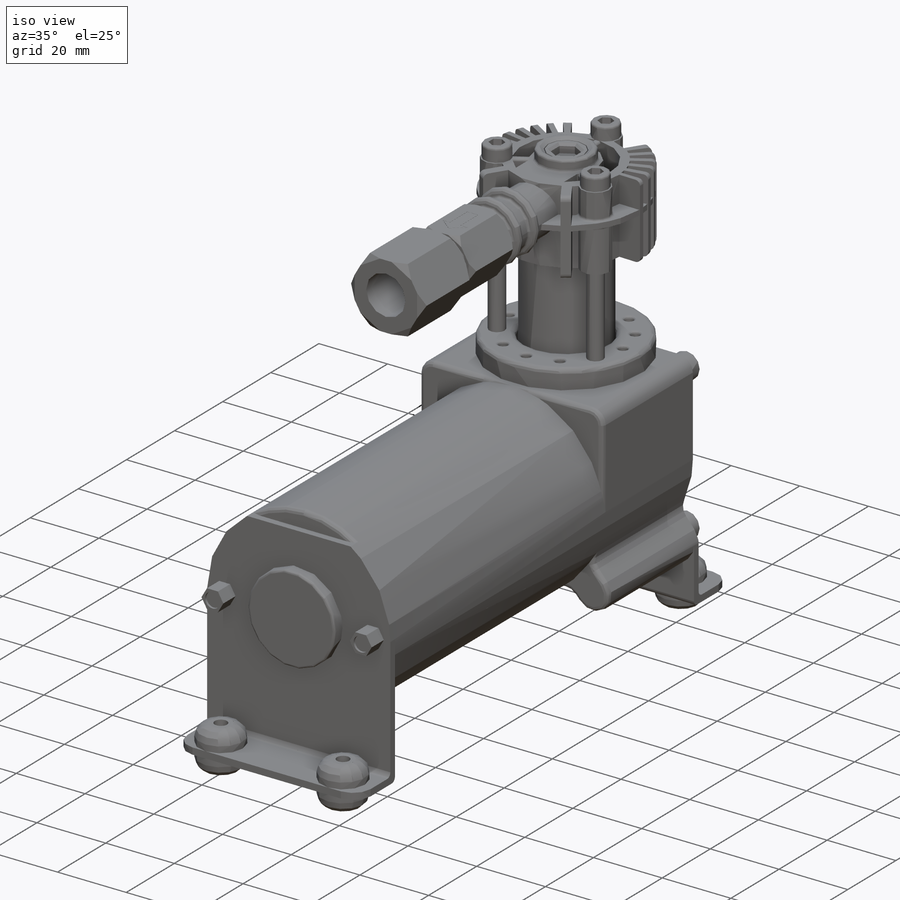
[diagram: iso view]
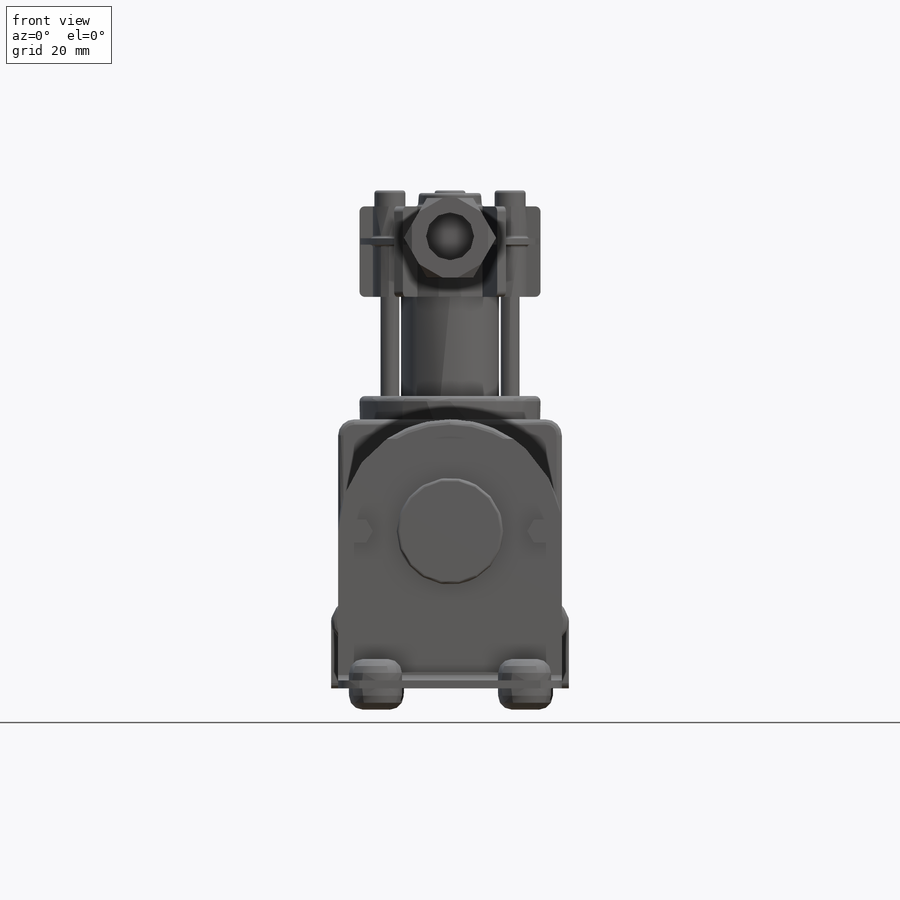
[diagram: front view]
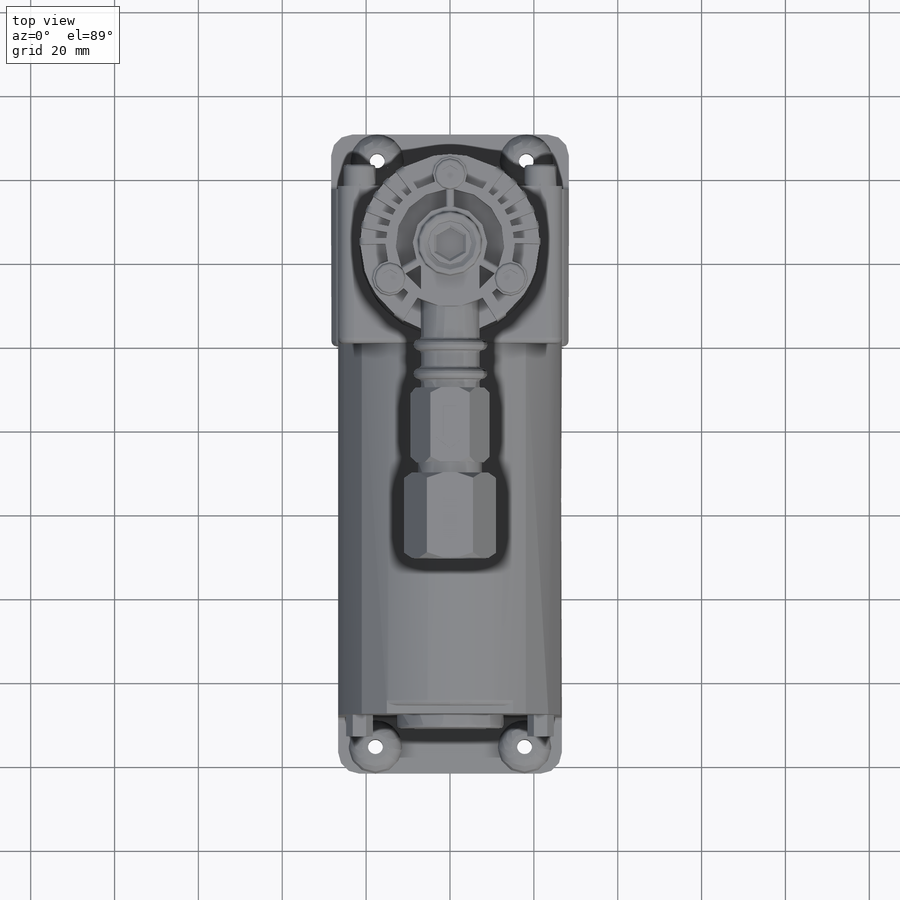
[diagram: top view]
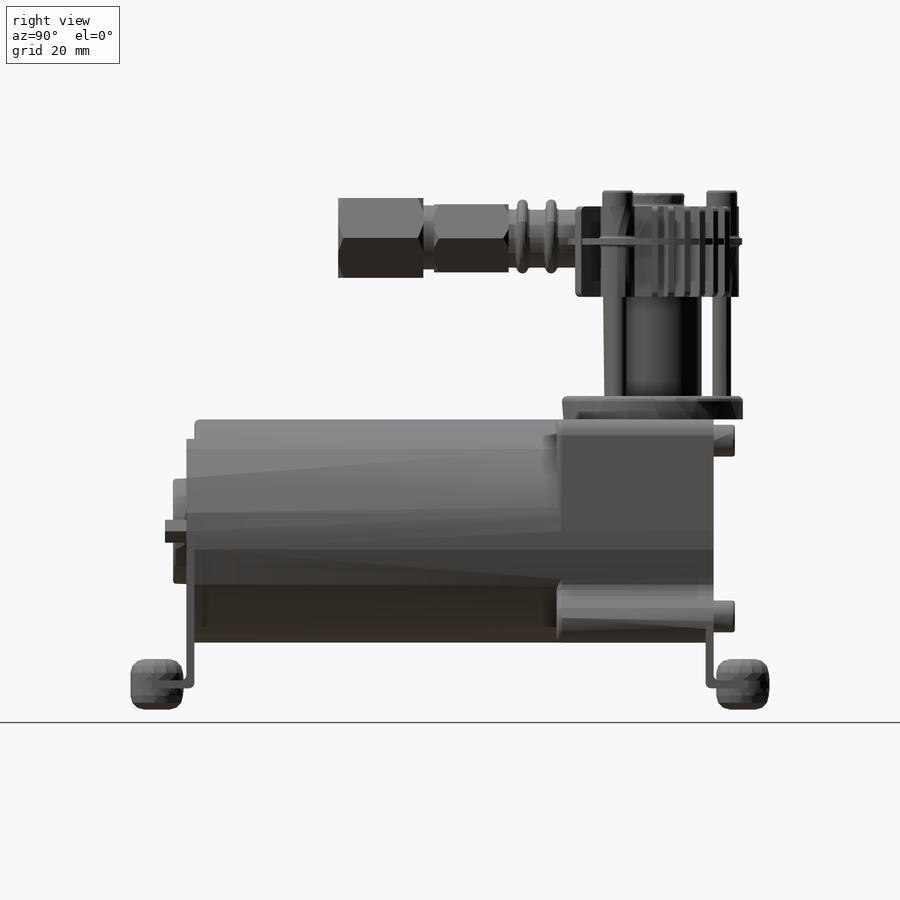
[diagram: right view]
SOLIDWORKS PART (.sldprt)
format: sldprt  version: not decoded by parser v0  size: 2,042,880 bytes
history: native  units: mm
features: sketch x38, extrude x26, chamfer x26, fillet x19, cut_extrude x12, plane x3, material x1, mirror x1 (+15 scaffold rows collapsed; 2 parser-record rows omitted)
feature tree (143):
  scaffold x15  (default folders/planes/origin — collapsed)
  material  "Material <not specified>"
  sketch  "Sketch1"  dims[D1=~24.645358mm]
  extrude  "Boss-Extrude1"  Depth=86.36mm
  sketch  "Sketch2"  dims[D1=~8.801999mm]
  extrude  "Boss-Extrude2"  Depth=5.08mm
  fillet  "Fillet3"  Radius=0.635mm
  sketch  "Sketch3"  dims[D1=3.81mm D2=~19.600158mm]
  extrude  "Boss-Extrude3"  Depth=35.56mm
  sketch  "Sketch4"  dims[c1.D1=~21.366873mm c1.D2=24.13mm c2.D1=22.86mm]
  extrude  "Boss-Extrude4"  Depth=5.588mm
  sketch  "Sketch5"  dims[D1=35.56mm]
  fillet  "Fillet10"  Radius=1.27mm
  sketch  "Sketch12"  dims[D1=23.495mm]
  extrude  "Boss-Extrude12"  Depth=29.21mm
  sketch  "Sketch13"  dims[c1.D1=~1.174883mm c1.D2=2.54mm c2.D1=12.0]
  cut_extrude  "Cut-Extrude1"  Depth=1.905mm
  fillet  "Fillet11"  Radius=0.635mm
  extrude  "Boss-Extrude5"  Depth=1.905mm
  sketch  "Sketch6"  dims[D1=15.24mm]
  extrude  "Boss-Extrude6"  Depth=1.905mm
  fillet  "Fillet4"  Radius=1.27mm
  fillet  "Fillet5"  Radius=5.08mm
  sketch  "Sketch7"  dims[D1=8.89mm D2=6.35mm D3=2.0]
  extrude  "Boss-Extrude7"  Depth=5.08mm
  fillet  "Fillet6"  Radius=3.302mm
  sketch  "Sketch9"  dims[c1.D2=~20.840038mm c2.D2=90.0deg c3.D2=0.0mm c3.D1=0.0mm]
  extrude  "Boss-Extrude9"  Depth=1.905mm
  sketch  "Sketch10"  dims[D1=15.24mm]
  extrude  "Boss-Extrude10"  Depth=1.905mm
  fillet  "Fillet7"  Radius=1.27mm
  fillet  "Fillet8"  Radius=5.08mm
  sketch  "Sketch11"  dims[D1=12.7mm D2=6.35mm D3=~10.998969mm D4=2.0]
  extrude  "Boss-Extrude11"  Depth=5.08mm
  fillet  "Fillet9"  Radius=3.302mm
  sketch  "Sketch15"  dims[D1=4.445mm D2=4.445mm D3=4.445mm]
  extrude  "Boss-Extrude13"  [1 undecoded]
  fillet  "Fillet12"  Radius=1.27mm
  fillet  "Fillet13"  Radius=1.27mm
  sketch  "Sketch16"  dims[D1=43.18mm]
  extrude  "Boss-Extrude14"  Depth=21.59mm
  sketch  "Sketch17"  dims[c1.D3=~13.218641mm c1.D6=21.59mm c1.D11=~15.265503mm c1.D1=22.86mm c2.D1=55.0deg c2.D2=11.938mm c2.D6=~23.822611mm c3.D1=~3.62606mm c4.D1=~2.132604deg c5.D1=2.54mm c5.D2=2.54mm c5.D3=~5.064235mm c6.D3=65.0deg c6.D4=~6.347947mm c7.D4=56.0deg c7.D5=~6.352097mm c8.D5=56.0deg c8.D6=~6.145689mm c9.D6=177.0deg c10.D6=22.606mm c10.D7=11.303mm c10.D8=6.35mm c10.D9=6.35mm c10.D10=6.604mm c10.D11=~5.363866mm c11.D11=65.0deg c12.D11=~6.348711mm c12.D3=0.0mm c12.D2=0.0mm]
  cut_extrude  "Cut-Extrude2"  [1 undecoded]
  plane  "Plane2"  Offset=24.13mm
  sketch  "Sketch18"  dims[D1=7.62mm]
  extrude  "Boss-Extrude15"  Depth=35.56mm
  sketch  "Sketch19"
  extrude  "Boss-Extrude16"  Depth=17.78mm
  sketch  "Sketch20"  dims[D1=~6.043853mm]
  extrude  "Boss-Extrude17"  Depth=2.54mm
  sketch  "Sketch21"
  extrude  "Boss-Extrude18"  Depth=20.32mm
  sketch  "Sketch22"  dims[D1=~3.309094mm]
  extrude  "Boss-Extrude19"  [1 undecoded]
  sketch  "Sketch23"  dims[D1=~7.74475mm]
  cut_extrude  "Cut-Extrude3"  [1 undecoded]
  parser-record x2  (decoder bookkeeping rows leaked as tree rows — omitted from the tree; the rows remain in map.json)
  chamfer  "Chamfer2"  Distance=3.81mm
  chamfer  "Chamfer3"  Distance=3.81mm
  chamfer  "Chamfer4"  Distance=3.81mm
  chamfer  "Chamfer5"  Distance=3.81mm
  chamfer  "Chamfer6"  Distance=3.81mm
  chamfer  "Chamfer7"  Distance=3.81mm
  chamfer  "Chamfer8"  Distance=1.27mm
  chamfer  "Chamfer9"  Distance=1.27mm
  chamfer  "Chamfer10"  Distance=1.27mm
  chamfer  "Chamfer11"  Distance=1.27mm
  chamfer  "Chamfer12"  Distance=1.27mm
  chamfer  "Chamfer13"  Distance=3.81mm
  chamfer  "Chamfer14"  Distance=2.54mm
  chamfer  "Chamfer15"  Distance=2.54mm
  chamfer  "Chamfer16"  Distance=2.54mm
  chamfer  "Chamfer17"  Distance=2.54mm
  chamfer  "Chamfer18"  Distance=2.54mm
  chamfer  "Chamfer19"  Distance=2.54mm
  chamfer  "Chamfer20"  Distance=1.27mm
  chamfer  "Chamfer21"  Distance=1.27mm
  chamfer  "Chamfer22"  Distance=1.27mm
  chamfer  "Chamfer23"  Distance=1.27mm
  chamfer  "Chamfer24"  Distance=1.27mm
  chamfer  "Chamfer25"  Distance=2.54mm
  sketch  "Sketch24"  dims[c1.D1=2.794mm c1.D2=7.366mm c2.D1=3.0]
  extrude  "Boss-Extrude20"  Depth=3.81mm
  fillet  "Fillet14"  Radius=0.635mm
  sketch  "Sketch25"
  cut_extrude  "Cut-Extrude4"  Depth=3.048mm
  plane  "Plane3"  Offset=6.858mm
  sketch  "Sketch26"  dims[D1=10.16mm]
  extrude  "Boss-Extrude21"  Depth=2.54mm
  sketch  "Sketch27"  dims[D1=~8.134657mm]
  extrude  "Boss-Extrude22"  Depth=2.54mm
  fillet  "Fillet16"  Radius=1.27mm
  fillet  "Fillet17"  Radius=0.635mm
  sketch  "Sketch30"  dims[c1.D1=30.48mm c1.D2=~6.333586mm c2.D2=10.0deg c2.D4=6.604mm c2.D3=5.0]
  cut_extrude  "Cut-Extrude5"  [1 undecoded]
  mirror  "Mirror1"
  sketch  "Sketch31"  dims[c1.D1=~12.216007mm c1.D6=12.954mm c1.D7=8.89mm c2.D1=1.905mm c2.D2=0.9525mm c2.D3=13.97mm c2.D4=6.985mm c2.D5=3.0]
  cut_extrude  "Cut-Extrude6"  Depth=10.16mm
  sketch  "Sketch32"  dims[D1=5.08mm]
  extrude  "Boss-Extrude23"  Depth=3.175mm
  sketch  "Sketch33"  dims[D1=10.287mm]
  extrude  "Boss-Extrude24"  Depth=2.54mm
  sketch  "Sketch34"  dims[D1=3.175mm D2=7.239mm D3=7.239mm D4=4.445mm D5=2.032mm D6=10.16mm D7=0.0508mm]
  cut_extrude  "Cut-Extrude7"  Depth=0.508mm
  fillet  "Fillet18"  Radius=1.27mm
  fillet  "Fillet21"  Radius=0.635mm
  chamfer  "Chamfer26"  Distance=1.016mm
  chamfer  "Chamfer27"  Distance=0.635mm Angle=45deg
  fillet  "Fillet22"  Radius=0.635mm
  plane  "Plane4"  Offset=69.85mm
  sketch  "Sketch35"
  extrude  "Boss-Extrude25"  Depth=1.524mm
  sketch  "Sketch36"  dims[D1=5.08mm D2=5.08mm D3=2.0 D4=2.0]
  extrude  "Boss-Extrude26"  Depth=5.08mm
  fillet  "Fillet23"  Radius=0.635mm
  sketch  "Sketch37"  dims[D1=21.59mm D2=21.59mm D3=3.175mm D4=3.175mm]
  extrude  "Boss-Extrude27"  Depth=5.08mm
  fillet  "Fillet24"  Radius=0.635mm
  sketch  "Sketch38"
  cut_extrude  "Cut-Extrude8"  Depth=0.03175mm
  sketch  "Sketch39"  dims[D1=2.0 D2=2.0]
  cut_extrude  "Cut-Extrude9"  Depth=1.27mm
  sketch  "Sketch40"  dims[D1=~1.857019mm D2=2.0]
  cut_extrude  "Cut-Extrude10"  [1 undecoded]
  sketch  "Sketch41"  dims[c1.D1=~1.68631mm c2.D1=2.0]
  cut_extrude  "Cut-Extrude11"  [1 undecoded]
  sketch  "Sketch42"  dims[D1=~1.999419mm]
  cut_extrude  "Cut-Extrude12"  Depth=0.635mm
decode coverage: 109 of 122 modeling features carry decoded parameters
note: ~ marks probable driven/reference dimensions
note: 7 parameter values undecoded
summary: no parameter record found for 7 features
note: suppression state not decoded; provenance and decode notes live in map.json
